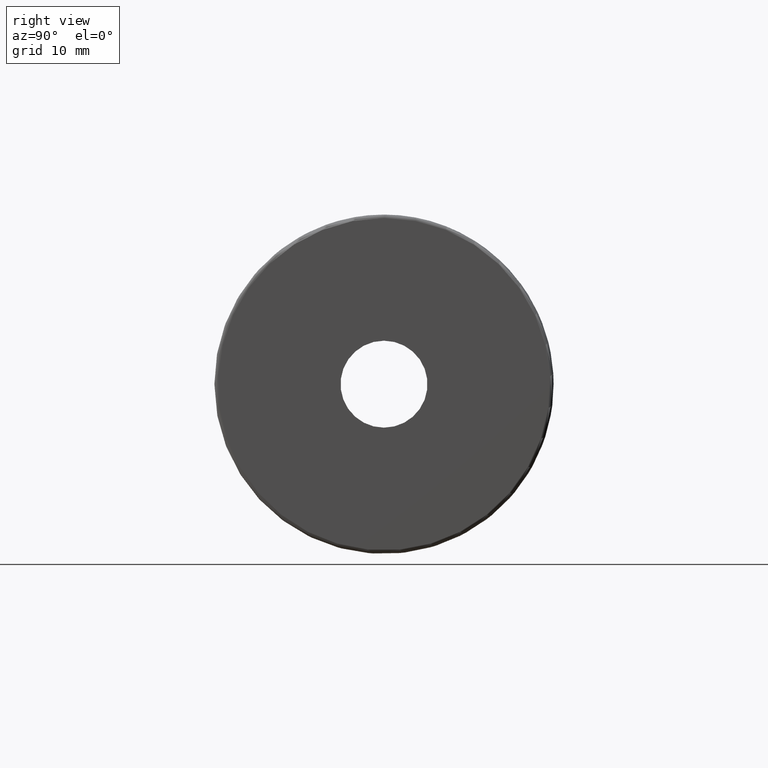
[diagram: clean part render]
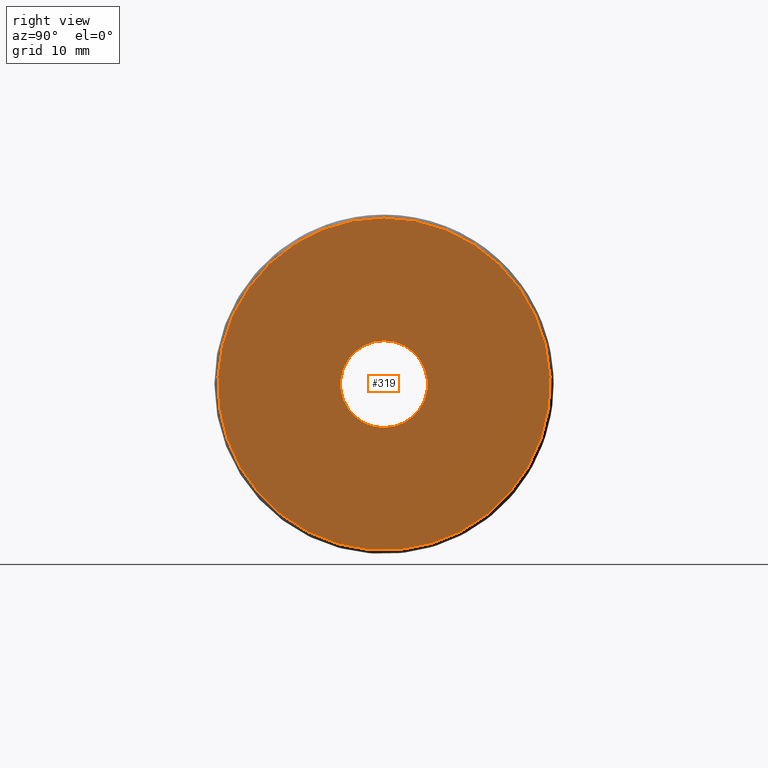
[diagram: same view with one face highlighted and labeled with its STEP entity id]
A machine part, right view. The second image highlights one B-rep face of the part: STEP entity #319.
In plain terms, the highlighted planar face has unit normal (1, 0, 0).
Its self-contained STEP definition (entity closure, byte-faithful):
#89=FACE_BOUND('',#130,.T.);
#93=PLANE('',#379);
#111=FACE_OUTER_BOUND('',#129,.T.);
#129=EDGE_LOOP('',(#288));
#130=EDGE_LOOP('',(#289));
#155=CIRCLE('',#347,5.);
#174=CIRCLE('',#377,19.1);
#181=VERTEX_POINT('',#525);
#200=VERTEX_POINT('',#583);
#202=EDGE_CURVE('',#181,#181,#155,.T.);
#230=EDGE_CURVE('',#200,#200,#174,.T.);
#288=ORIENTED_EDGE('',*,*,#230,.F.);
#289=ORIENTED_EDGE('',*,*,#202,.T.);
#319=ADVANCED_FACE('',(#111,#89),#93,.T.);
#347=AXIS2_PLACEMENT_3D('',#526,#405,#406);
#377=AXIS2_PLACEMENT_3D('',#584,#474,#475);
#379=AXIS2_PLACEMENT_3D('',#586,#478,#479);
#405=DIRECTION('center_axis',(-1.,0.,0.));
#406=DIRECTION('ref_axis',(0.,0.,-1.));
#474=DIRECTION('center_axis',(-1.,0.,0.));
#475=DIRECTION('ref_axis',(0.,-1.,1.83697019872103E-16));
#478=DIRECTION('center_axis',(1.,0.,0.));
#479=DIRECTION('ref_axis',(0.,0.,-1.));
#525=CARTESIAN_POINT('',(0.,-6.12323399573677E-16,5.));
#526=CARTESIAN_POINT('Origin',(0.,0.,0.));
#583=CARTESIAN_POINT('',(4.44089209850063E-15,-2.33907538637144E-15,19.1));
#584=CARTESIAN_POINT('Origin',(4.44089209850063E-15,0.,0.));
#586=CARTESIAN_POINT('Origin',(4.44089209850063E-15,0.,0.));